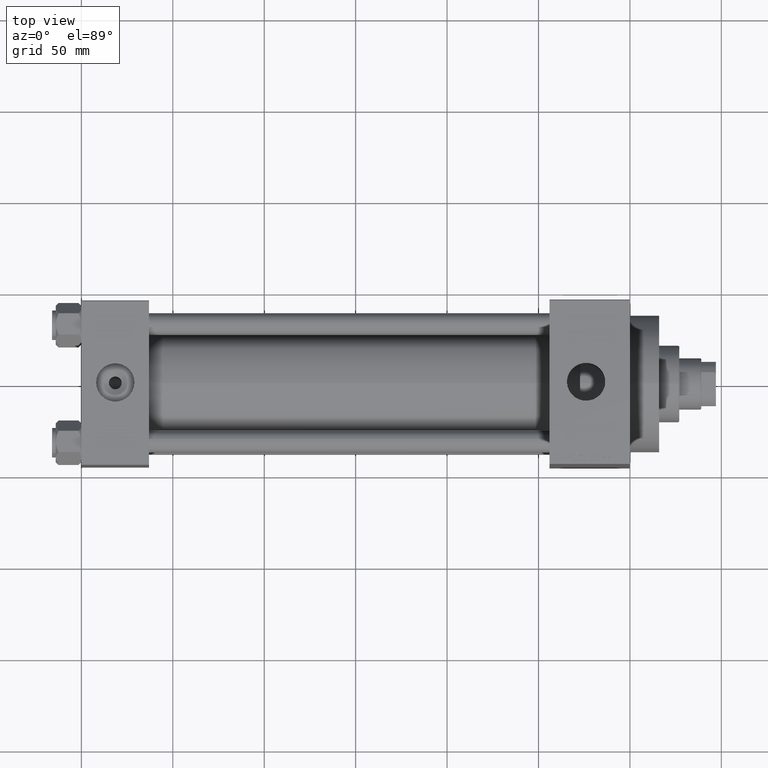
[diagram: clean part render]
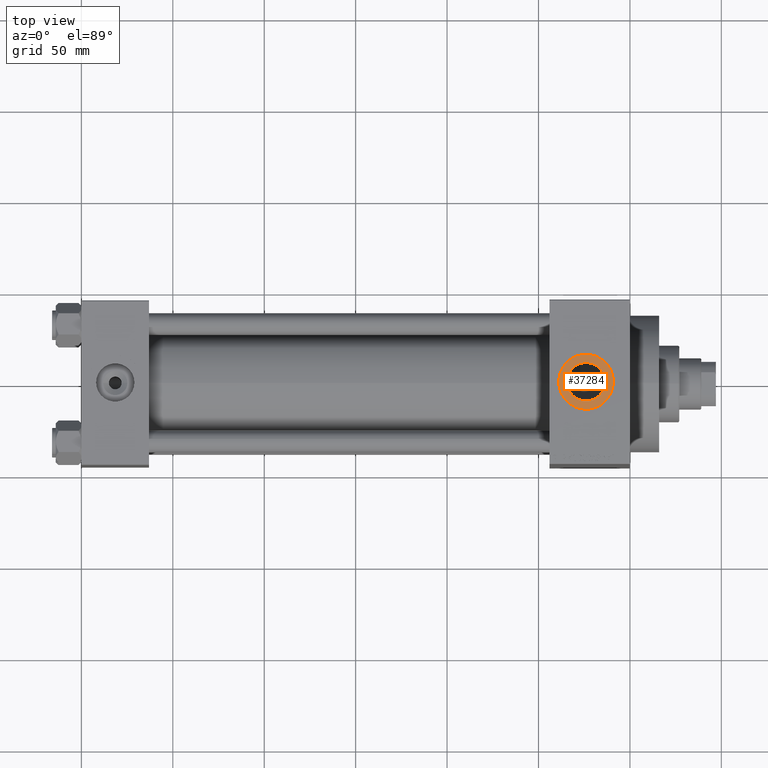
[diagram: same view with one face highlighted and labeled with its STEP entity id]
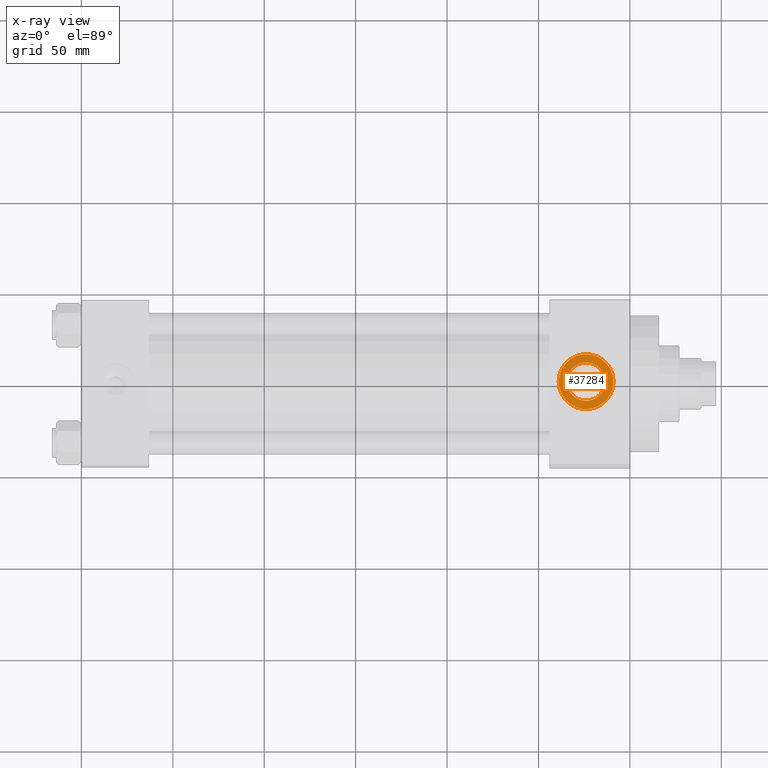
[diagram: x-ray of the same camera — body ghosted, the highlighted face saturated]
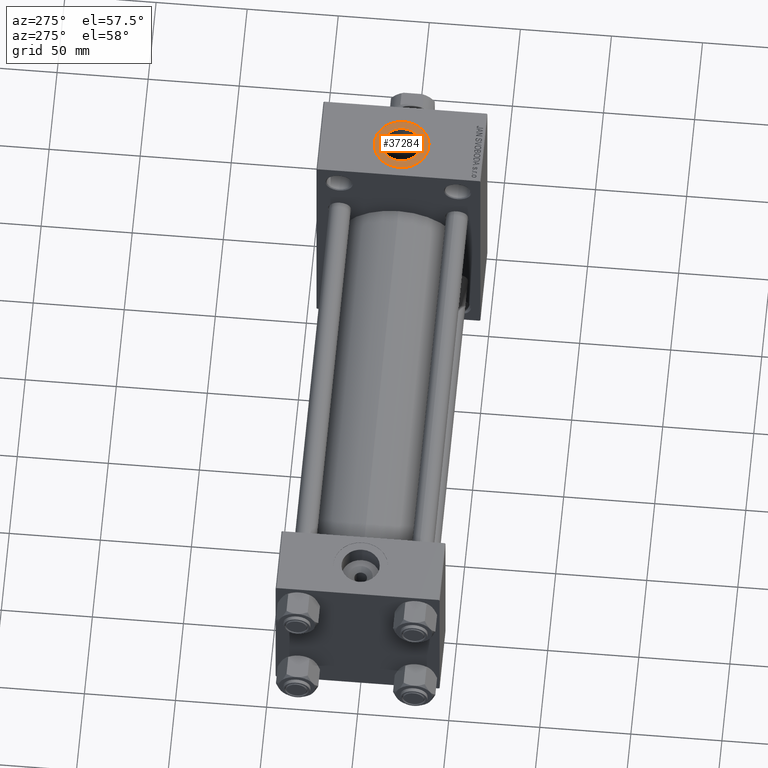
[diagram: same view with one face highlighted and labeled with its STEP entity id]
A machine part, top view. The second image highlights one B-rep face of the part: STEP entity #37284.
The next image is the same camera in x-ray: the body ghosted, the highlighted face saturated — about 0% of this face is hidden behind the body in this view.
A second angle (auxiliary view) of the same face is appended — the face is thin or edge-on in the first view.
In plain terms, the highlighted planar face has unit normal (0, 0, 1).
Its self-contained STEP definition (entity closure, byte-faithful):
#2029 = PLANE ( 'NONE',  #11121 ) ;
#2320 = DIRECTION ( 'NONE',  ( 1.000000000000000000, 0.000000000000000000, 0.000000000000000000 ) ) ;
#3319 = ORIENTED_EDGE ( 'NONE', *, *, #30676, .T. ) ;
#3560 = ORIENTED_EDGE ( 'NONE', *, *, #41371, .T. ) ;
#5086 = EDGE_LOOP ( 'NONE', ( #37150, #3319 ) ) ;
#5133 = DIRECTION ( 'NONE',  ( 1.000000000000000000, 0.000000000000000000, -0.000000000000000000 ) ) ;
#7159 = DIRECTION ( 'NONE',  ( -0.000000000000000000, -0.000000000000000000, -1.000000000000000000 ) ) ;
#8339 = CARTESIAN_POINT ( 'NONE',  ( 265.5200000000000387, -1.094803260394251466E-14, 70.79999999999996874 ) ) ;
#10015 = DIRECTION ( 'NONE',  ( 0.000000000000000000, 0.000000000000000000, 1.000000000000000000 ) ) ;
#10355 = DIRECTION ( 'NONE',  ( 0.000000000000000000, 0.000000000000000000, 1.000000000000000000 ) ) ;
#10523 = CIRCLE ( 'NONE', #44835, 15.00000000000001421 ) ;
#10882 = CIRCLE ( 'NONE', #15488, 10.47999999999998977 ) ;
#11121 = AXIS2_PLACEMENT_3D ( 'NONE', #16348, #16593, #5133 ) ;
#11225 = CARTESIAN_POINT ( 'NONE',  ( 276.0000000000000000, -1.094803260394251466E-14, 70.79999999999996874 ) ) ;
#11464 = DIRECTION ( 'NONE',  ( 1.000000000000000000, 0.000000000000000000, 0.000000000000000000 ) ) ;
#11750 = EDGE_CURVE ( 'NONE', #41718, #43593, #10523, .T. ) ;
#15488 = AXIS2_PLACEMENT_3D ( 'NONE', #29875, #15575, #33691 ) ;
#15575 = DIRECTION ( 'NONE',  ( -0.000000000000000000, -0.000000000000000000, -1.000000000000000000 ) ) ;
#16088 = EDGE_LOOP ( 'NONE', ( #29751, #3560 ) ) ;
#16348 = CARTESIAN_POINT ( 'NONE',  ( 276.0000000000000000, -1.094803260394251466E-14, 70.79999999999996874 ) ) ;
#16593 = DIRECTION ( 'NONE',  ( 0.000000000000000000, 0.000000000000000000, 1.000000000000000000 ) ) ;
#17629 = CARTESIAN_POINT ( 'NONE',  ( 276.0000000000000000, -1.094803260394251466E-14, 70.79999999999996874 ) ) ;
#20162 = FACE_OUTER_BOUND ( 'NONE', #16088, .T. ) ;
#21526 = CIRCLE ( 'NONE', #32188, 10.47999999999998977 ) ;
#26005 = VERTEX_POINT ( 'NONE', #8339 ) ;
#26667 = EDGE_CURVE ( 'NONE', #26005, #30943, #21526, .T. ) ;
#28950 = CARTESIAN_POINT ( 'NONE',  ( 276.0000000000000000, -1.094803260394251466E-14, 70.79999999999996874 ) ) ;
#29751 = ORIENTED_EDGE ( 'NONE', *, *, #11750, .T. ) ;
#29875 = CARTESIAN_POINT ( 'NONE',  ( 276.0000000000000000, -1.094803260394251466E-14, 70.79999999999996874 ) ) ;
#30676 = EDGE_CURVE ( 'NONE', #30943, #26005, #10882, .T. ) ;
#30943 = VERTEX_POINT ( 'NONE', #36994 ) ;
#32188 = AXIS2_PLACEMENT_3D ( 'NONE', #11225, #7159, #11464 ) ;
#32402 = DIRECTION ( 'NONE',  ( 1.000000000000000000, 0.000000000000000000, 0.000000000000000000 ) ) ;
#33691 = DIRECTION ( 'NONE',  ( 1.000000000000000000, 0.000000000000000000, 0.000000000000000000 ) ) ;
#34852 = AXIS2_PLACEMENT_3D ( 'NONE', #17629, #10015, #32402 ) ;
#35635 = CIRCLE ( 'NONE', #34852, 15.00000000000001421 ) ;
#36994 = CARTESIAN_POINT ( 'NONE',  ( 286.4800000000000182, -9.664602758436089169E-15, 70.79999999999996874 ) ) ;
#37150 = ORIENTED_EDGE ( 'NONE', *, *, #26667, .T. ) ;
#37284 = ADVANCED_FACE ( 'NONE', ( #37821, #20162 ), #2029, .T. ) ;
#37572 = CARTESIAN_POINT ( 'NONE',  ( 261.0000000000000000, -9.111062405221479547E-15, 70.79999999999996874 ) ) ;
#37821 = FACE_BOUND ( 'NONE', #5086, .T. ) ;
#41371 = EDGE_CURVE ( 'NONE', #43593, #41718, #35635, .T. ) ;
#41393 = CARTESIAN_POINT ( 'NONE',  ( 291.0000000000000568, -1.094803260394251466E-14, 70.79999999999996874 ) ) ;
#41718 = VERTEX_POINT ( 'NONE', #41393 ) ;
#43593 = VERTEX_POINT ( 'NONE', #37572 ) ;
#44835 = AXIS2_PLACEMENT_3D ( 'NONE', #28950, #10355, #2320 ) ;